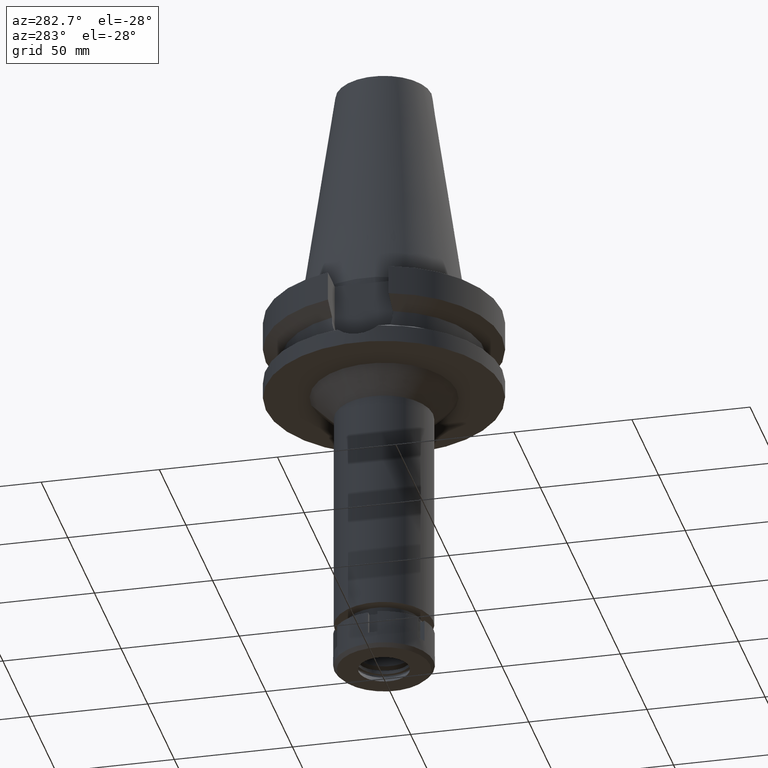
[diagram: clean part render]
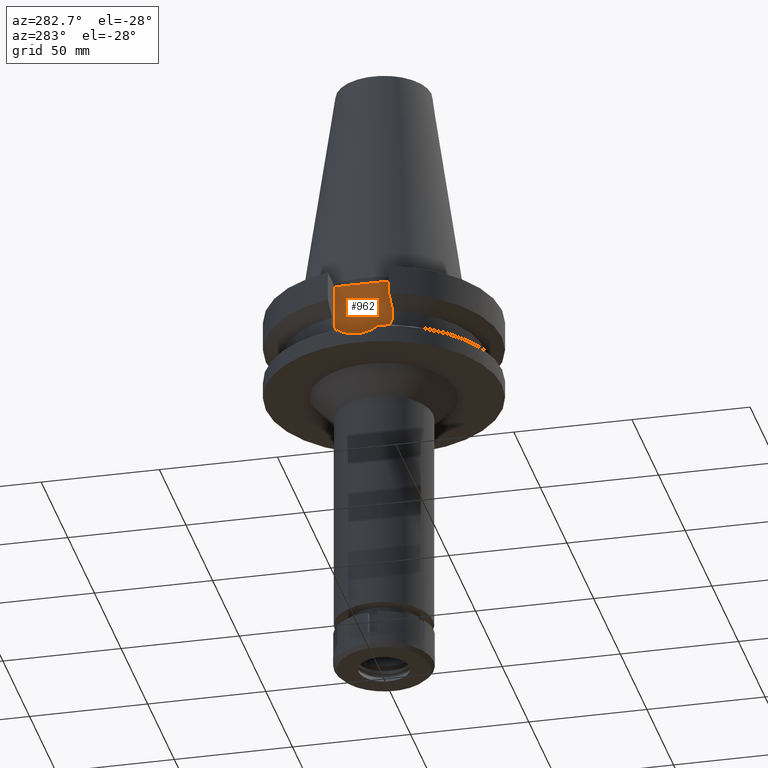
[diagram: same view with one face highlighted and labeled with its STEP entity id]
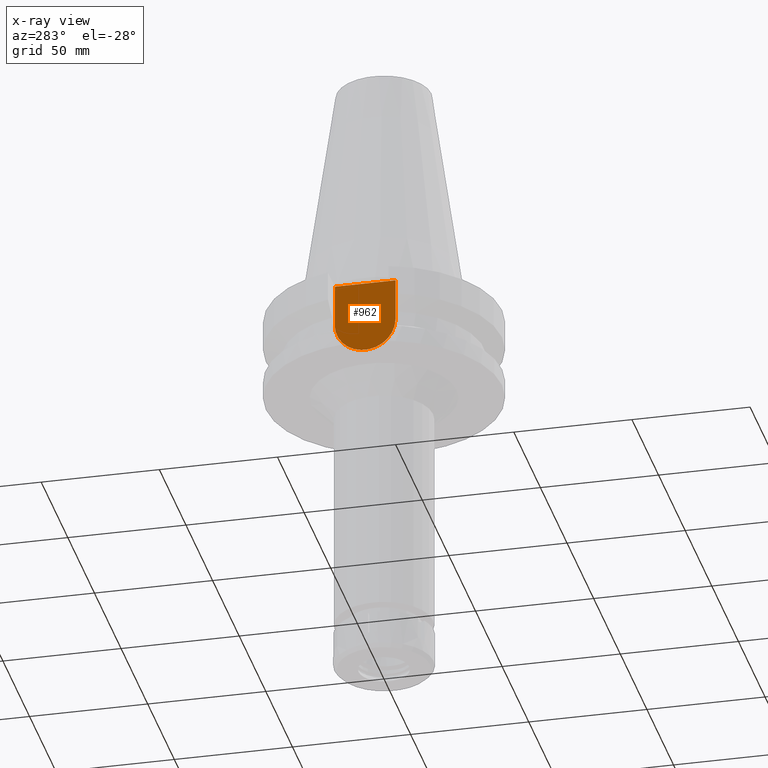
[diagram: x-ray of the same camera — body ghosted, the highlighted face saturated]
A machine part, auxiliary view. The second image highlights one B-rep face of the part: STEP entity #962.
The next image is the same camera in x-ray: the body ghosted, the highlighted face saturated — about 0% of this face is hidden behind the body in this view.
In plain terms, the highlighted planar face has unit normal (-1, 0, 0).
Its self-contained STEP definition (entity closure, byte-faithful):
#37 = LINE ( 'NONE', #1190, #2451 ) ;
#49 = VECTOR ( 'NONE', #2930, 1000.000000000000000 ) ;
#74 = LINE ( 'NONE', #2085, #1240 ) ;
#84 = ORIENTED_EDGE ( 'NONE', *, *, #3037, .F. ) ;
#427 = CARTESIAN_POINT ( 'NONE',  ( -35.39999999999999858, 1.497743035356999952E-14, -21.14999999999999858 ) ) ;
#725 = EDGE_CURVE ( 'NONE', #1153, #1991, #74, .T. ) ;
#744 = VERTEX_POINT ( 'NONE', #2957 ) ;
#768 = CIRCLE ( 'NONE', #1622, 12.84999999999999964 ) ;
#824 = ORIENTED_EDGE ( 'NONE', *, *, #3366, .T. ) ;
#926 = LINE ( 'NONE', #3186, #49 ) ;
#962 = ADVANCED_FACE ( 'NONE', ( #2037 ), #3677, .T. ) ;
#1148 = DIRECTION ( 'NONE',  ( 0.0000000000000000000, 0.0000000000000000000, 1.000000000000000000 ) ) ;
#1153 = VERTEX_POINT ( 'NONE', #1559 ) ;
#1156 = CARTESIAN_POINT ( 'NONE',  ( -35.39999999999999858, 12.84999999999999964, -21.14999999999999858 ) ) ;
#1162 = CARTESIAN_POINT ( 'NONE',  ( -35.39999999999999858, 2.015768631397000034E-14, 0.0000000000000000000 ) ) ;
#1190 = CARTESIAN_POINT ( 'NONE',  ( -35.39999999999999858, -12.84999999999999964, -3.000000000000000000 ) ) ;
#1207 = ORIENTED_EDGE ( 'NONE', *, *, #725, .F. ) ;
#1240 = VECTOR ( 'NONE', #3217, 1000.000000000000000 ) ;
#1444 = CARTESIAN_POINT ( 'NONE',  ( -35.39999999999999858, -12.84999999999999964, -21.14999999999999858 ) ) ;
#1559 = CARTESIAN_POINT ( 'NONE',  ( -35.39999999999999858, -12.84999999999999964, -3.000000000000000000 ) ) ;
#1622 = AXIS2_PLACEMENT_3D ( 'NONE', #427, #2762, #2532 ) ;
#1991 = VERTEX_POINT ( 'NONE', #1444 ) ;
#2037 = FACE_OUTER_BOUND ( 'NONE', #3021, .T. ) ;
#2085 = CARTESIAN_POINT ( 'NONE',  ( -35.39999999999999858, -12.84999999999999964, -3.000000000000000000 ) ) ;
#2264 = DIRECTION ( 'NONE',  ( 0.0000000000000000000, 1.000000000000000000, 0.0000000000000000000 ) ) ;
#2451 = VECTOR ( 'NONE', #2264, 1000.000000000000000 ) ;
#2532 = DIRECTION ( 'NONE',  ( 0.0000000000000000000, -1.000000000000000000, 0.0000000000000000000 ) ) ;
#2762 = DIRECTION ( 'NONE',  ( 1.000000000000000000, 0.0000000000000000000, 0.0000000000000000000 ) ) ;
#2776 = VERTEX_POINT ( 'NONE', #1156 ) ;
#2895 = DIRECTION ( 'NONE',  ( -1.000000000000000000, 0.0000000000000000000, 0.0000000000000000000 ) ) ;
#2906 = AXIS2_PLACEMENT_3D ( 'NONE', #1162, #2895, #1148 ) ;
#2930 = DIRECTION ( 'NONE',  ( 0.0000000000000000000, 0.0000000000000000000, 1.000000000000000000 ) ) ;
#2957 = CARTESIAN_POINT ( 'NONE',  ( -35.39999999999999858, 12.84999999999999964, -3.000000000000000000 ) ) ;
#3021 = EDGE_LOOP ( 'NONE', ( #84, #3252, #1207, #824 ) ) ;
#3037 = EDGE_CURVE ( 'NONE', #2776, #744, #926, .T. ) ;
#3168 = EDGE_CURVE ( 'NONE', #1991, #2776, #768, .T. ) ;
#3186 = CARTESIAN_POINT ( 'NONE',  ( -35.39999999999999858, 12.84999999999999964, -21.14999999999999858 ) ) ;
#3217 = DIRECTION ( 'NONE',  ( 0.0000000000000000000, 0.0000000000000000000, -1.000000000000000000 ) ) ;
#3252 = ORIENTED_EDGE ( 'NONE', *, *, #3168, .F. ) ;
#3366 = EDGE_CURVE ( 'NONE', #1153, #744, #37, .T. ) ;
#3677 = PLANE ( 'NONE',  #2906 ) ;